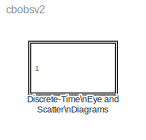
MODEL cbobsv2
KIND library
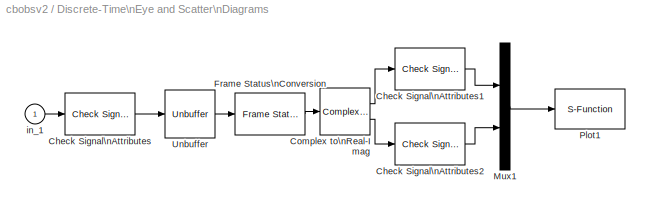
BLOCK [SubSystem] Discrete-Time\nEye and Scatter\nDiagrams
  CopyFcn = eyesampl2([],[],[],'CopyBlock')
  DeleteFcn = eyesampl2([],[],[],'DeleteBlock')
  LoadFcn = eyesampl2([],[],[],'LoadBlock')
  MaskCallbackString = |||||commblkeyescatdisc(gcb,'cbDiagram_type');|||
  MaskDescription = Create an eye diagram and/or scatter plot, depending on the Diagram type parameter.
  MaskDisplay = plot(0,0,100,100,[5 45 45 5 5 5 5+40*[0:1/15:1] 5+40*[1:-1/15:0] 5+40*[0:1/15:1] 5+40*[1:-1/15:0]], [35 35 95 95 35 65 sin([0:1/15:1]*pi)*25+65 sin(-[0:1/15:1]*pi)*25+65 sin([0:1/15:1]*pi)*17+65 sin(-[0:1/15:1]*pi)*18+65] , NaN, NaN, x+50,y+37,x+50,y+52,x+50,y+67,x+50,y+82, x+62,y+37,x+62,y+52,x+62,y+67,x+62,y+82, x+73,y+37,x+73,y+52,x+73,y+67,x+73,y+82, x+85,y+37,x+85,y+52,x+85,y+67,x+85,y+82, [5...<+34ch>
  MaskEnableString = on,on,on,on,on,on,on,off,on
  MaskHelp = helpview(commbhelp)
  MaskIconFrame = on
  MaskIconOpaque = on
  MaskIconRotate = none
  MaskIconUnits = autoscale
  MaskInitialization = x = [2 8 5 2 8 5 5 5];\ny = [2 8 5 8 2 5 8 2];\n[eStr outparams] = commblkeyescatdisc(gcb,'init');\nif(eStr .ecode ~= 0)\n   error(eStr .emsg);\nend
  MaskPromptString = Trace period:|Trace offset:|Decision point:|Lower and upper bounds of diagram (2-element vector):|Number of saved traces:|Diagram type:|Line type for eye diagram:|Line type for scatter diagram:|Sample time for plot update:
  MaskSelfModifiable = on
  MaskStyleString = edit,edit,edit,edit,edit,popup(Eye Diagram|Scatter Diagram|Eye and Scatter Diagrams),edit,edit,edit
  MaskToolTipString = on,on,on,on,on,on,on,on,on
  MaskTunableValueString = off,off,off,off,off,off,off,off,off
  MaskType = Discrete-Time Eye and Scatter Diagrams
  MaskValueString = 1|0|.5|[-1.5 1.5]|5|Eye Diagram|b-/r-|b.|1/100
  MaskVarAliasString = ,,,,,,,,
  MaskVariables = time_range=@1;time_offset=@2;time_decision=@3;boundary=@4;kept_length=@5;diagram_type=&6;eye_line=&7;scatter_line=&8;sample_time=@9;
  MaskVisibilityString = on,on,on,on,on,on,on,off,on
  NameChangeFcn = eyesampl2([],[],[],'NameChange')
  Ports = [1]
  StartFcn = eyesampl2([],[],[],'Start')
  StopFcn = eyesampl2([],[],[],'Stop')
  TreatAsAtomicUnit = off
BLOCK [Reference] Discrete-Time\nEye and Scatter\nDiagrams/Check Signal\nAttributes  REF=dspsigattribs/Check Signal\nAttributes
  Complexity = Ignore
  DatatypeCheckMethod = Is not...
  DatatypeGeneral = Boolean
  Dimensions = Column vector (2-D) or scalar
  DimsCheckMethod = Is...
  DtypeFixedSpecific = Any fixed-point
  DtypeFloatSpecific = Any floating-point
  DtypeIntSpecific = Any integer
  Frame = Ignore
  Ports = [1, 1]
  SampleMode = Discrete
  SigAttribCheckMethod = Does not match attributes exactly
  SourceBlock = dspsigattribs/Check Signal\nAttributes
  SourceType = Check Signal Attributes
BLOCK [Reference] Discrete-Time\nEye and Scatter\nDiagrams/Check Signal\nAttributes1  REF=dspsigattribs/Check Signal\nAttributes
  Complexity = Ignore
  DatatypeCheckMethod = Ignore
  DatatypeGeneral = Boolean
  Dimensions = Scalar (1-D or 2-D)
  DimsCheckMethod = Is...
  DtypeFixedSpecific = Any fixed-point
  DtypeFloatSpecific = Any floating-point
  DtypeIntSpecific = Any integer
  Frame = Ignore
  Ports = [1, 1]
  SampleMode = Discrete
  SigAttribCheckMethod = Does not match attributes exactly
  SourceBlock = dspsigattribs/Check Signal\nAttributes
  SourceType = Check Signal Attributes
BLOCK [Reference] Discrete-Time\nEye and Scatter\nDiagrams/Check Signal\nAttributes2  REF=dspsigattribs/Check Signal\nAttributes
  Complexity = Ignore
  DatatypeCheckMethod = Ignore
  DatatypeGeneral = Boolean
  Dimensions = Scalar (1-D or 2-D)
  DimsCheckMethod = Is...
  DtypeFixedSpecific = Any fixed-point
  DtypeFloatSpecific = Any floating-point
  DtypeIntSpecific = Any integer
  Frame = Ignore
  Ports = [1, 1]
  SampleMode = Discrete
  SigAttribCheckMethod = Does not match attributes exactly
  SourceBlock = dspsigattribs/Check Signal\nAttributes
  SourceType = Check Signal Attributes
BLOCK [ComplexToRealImag] Discrete-Time\nEye and Scatter\nDiagrams/Complex to\nReal-Imag
  Output = Real and imag
  Ports = [1, 2]
BLOCK [Reference] Discrete-Time\nEye and Scatter\nDiagrams/Frame Status\nConversion  REF=dspsigattribs/Frame Status\nConversion
  Ports = [1, 1]
  SourceBlock = dspsigattribs/Frame Status\nConversion
  SourceType = Frame Status Conversion
  growRefPort = off
  outframe = Sample-based
BLOCK [Mux] Discrete-Time\nEye and Scatter\nDiagrams/Mux1
  DisplayOption = bar
  Inputs = 2
  Ports = [2, 1]
BLOCK [S-Function] Discrete-Time\nEye and Scatter\nDiagrams/Plot1
  FunctionName = eyesampl2
  MaskIconFrame = on
  MaskIconOpaque = on
  MaskIconRotate = none
  MaskIconUnits = autoscale
  MaskSelfModifiable = on
  Parameters = time_range, time_offset, time_decision, boundary, kept_length, diagram_type, eye_line, scatter_line, sample_time
  Ports = [1]
BLOCK [Reference] Discrete-Time\nEye and Scatter\nDiagrams/Unbuffer  REF=dspbuff3/Unbuffer
  Ports = [1, 1]
  SourceBlock = dspbuff3/Unbuffer
  SourceType = Unbuffer
  ic = 0
BLOCK [Inport] Discrete-Time\nEye and Scatter\nDiagrams/in_1
LINE Discrete-Time\nEye and Scatter\nDiagrams/Check Signal\nAttributes1:1 -> Discrete-Time\nEye and Scatter\nDiagrams/Mux1:1
LINE Discrete-Time\nEye and Scatter\nDiagrams/Check Signal\nAttributes2:1 -> Discrete-Time\nEye and Scatter\nDiagrams/Mux1:2
LINE Discrete-Time\nEye and Scatter\nDiagrams/Check Signal\nAttributes:1 -> Discrete-Time\nEye and Scatter\nDiagrams/Unbuffer:1
LINE Discrete-Time\nEye and Scatter\nDiagrams/Complex to\nReal-Imag:1 -> Discrete-Time\nEye and Scatter\nDiagrams/Check Signal\nAttributes1:1
LINE Discrete-Time\nEye and Scatter\nDiagrams/Complex to\nReal-Imag:2 -> Discrete-Time\nEye and Scatter\nDiagrams/Check Signal\nAttributes2:1
LINE Discrete-Time\nEye and Scatter\nDiagrams/Frame Status\nConversion:1 -> Discrete-Time\nEye and Scatter\nDiagrams/Complex to\nReal-Imag:1
LINE Discrete-Time\nEye and Scatter\nDiagrams/Mux1:1 -> Discrete-Time\nEye and Scatter\nDiagrams/Plot1:1
LINE Discrete-Time\nEye and Scatter\nDiagrams/Unbuffer:1 -> Discrete-Time\nEye and Scatter\nDiagrams/Frame Status\nConversion:1
LINE Discrete-Time\nEye and Scatter\nDiagrams/in_1:1 -> Discrete-Time\nEye and Scatter\nDiagrams/Check Signal\nAttributes:1
